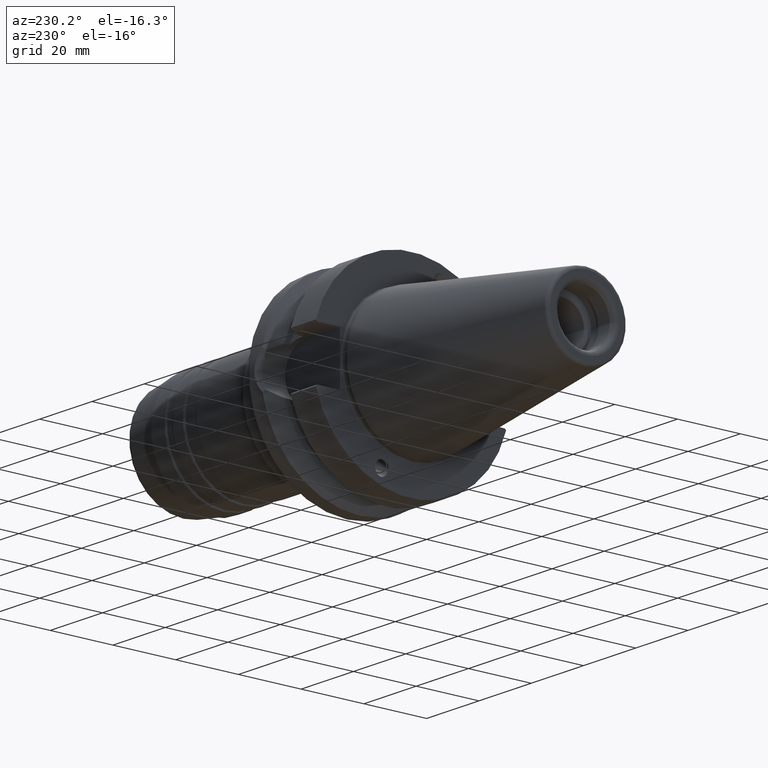
[diagram: clean part render]
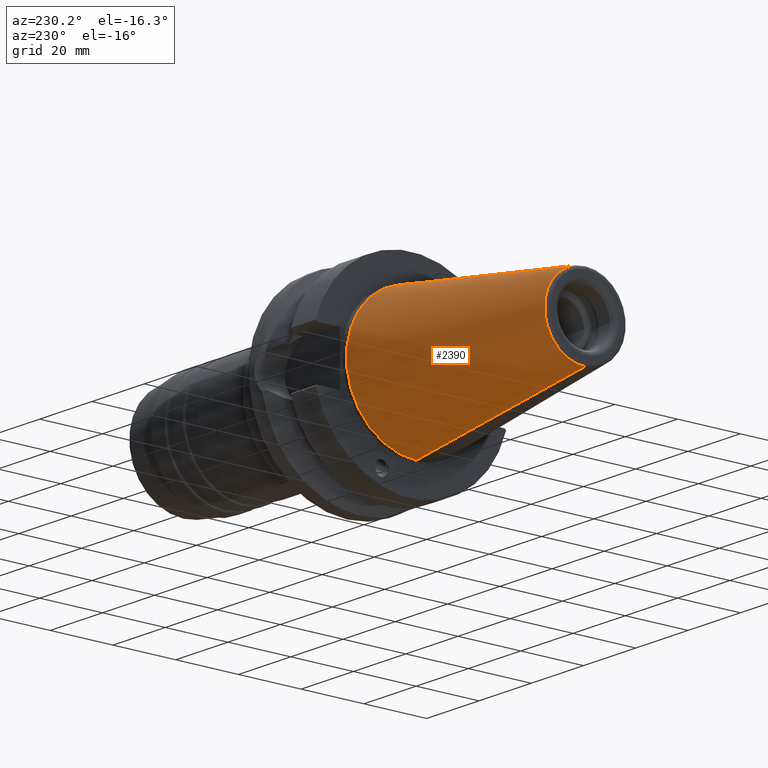
[diagram: same view with one face highlighted and labeled with its STEP entity id]
A machine part, auxiliary view. The second image highlights one B-rep face of the part: STEP entity #2390.
In plain terms, the highlighted conical surface has half-angle 8.297 deg.
Its self-contained STEP definition (entity closure, byte-faithful):
#2=CARTESIAN_POINT('',(0.E0,0.E0,0.E0));
#3=DIRECTION('',(1.E0,0.E0,0.E0));
#4=DIRECTION('',(0.E0,0.E0,-1.E0));
#5=AXIS2_PLACEMENT_3D('',#2,#3,#4);
#7=CARTESIAN_POINT('',(-6.454430688323E1,0.E0,0.E0));
#8=DIRECTION('',(-1.E0,0.E0,0.E0));
#9=DIRECTION('',(0.E0,0.E0,1.E0));
#10=AXIS2_PLACEMENT_3D('',#7,#8,#9);
#25=DIRECTION('',(-9.895329824990E-1,-2.390662347400E-10,1.443068832268E-1));
#26=VECTOR('',#25,6.522703944722E1);
#27=CARTESIAN_POINT('',(5.606857200746E-10,1.565092715213E-8,
-2.222499999985E1));
#28=LINE('',#27,#26);
#34=DIRECTION('',(-9.895329824990E-1,2.390660335631E-10,-1.443068832268E-1));
#35=VECTOR('',#34,6.522703944722E1);
#36=CARTESIAN_POINT('',(5.606857200746E-10,-1.565091853005E-8,
2.222499999985E1));
#37=LINE('',#36,#35);
#2060=CARTESIAN_POINT('',(-6.454430688323E1,0.E0,1.281228923511E1));
#2061=CARTESIAN_POINT('',(-6.454430688323E1,0.E0,-1.281228923511E1));
#2062=VERTEX_POINT('',#2060);
#2063=VERTEX_POINT('',#2061);
#2064=CARTESIAN_POINT('',(4.547473508865E-13,0.E0,2.2225E1));
#2065=CARTESIAN_POINT('',(4.547473508865E-13,0.E0,-2.2225E1));
#2066=VERTEX_POINT('',#2064);
#2067=VERTEX_POINT('',#2065);
#2375=CARTESIAN_POINT('',(-3.227215344162E1,0.E0,0.E0));
#2376=DIRECTION('',(1.E0,0.E0,0.E0));
#2377=DIRECTION('',(0.E0,0.E0,1.E0));
#2378=AXIS2_PLACEMENT_3D('',#2375,#2376,#2377);
#2379=CONICAL_SURFACE('',#2378,1.751864461755E1,8.2971444E0);
#2381=ORIENTED_EDGE('',*,*,#2380,.T.);
#2383=ORIENTED_EDGE('',*,*,#2382,.T.);
#2385=ORIENTED_EDGE('',*,*,#2384,.T.);
#2387=ORIENTED_EDGE('',*,*,#2386,.F.);
#2388=EDGE_LOOP('',(#2381,#2383,#2385,#2387));
#2389=FACE_OUTER_BOUND('',#2388,.F.);
#2390=ADVANCED_FACE('',(#2389),#2379,.T.);
#6=CIRCLE('',#5,2.2225E1);
#11=CIRCLE('',#10,1.281228923511E1);
#2380=EDGE_CURVE('',#2067,#2066,#6,.T.);
#2382=EDGE_CURVE('',#2066,#2062,#37,.T.);
#2384=EDGE_CURVE('',#2062,#2063,#11,.T.);
#2386=EDGE_CURVE('',#2067,#2063,#28,.T.);